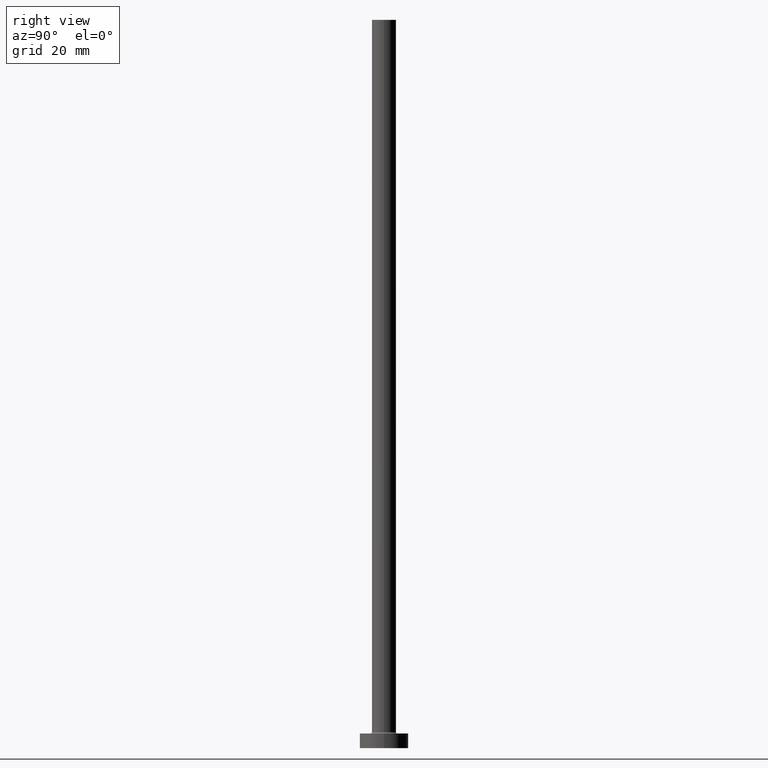
[diagram: clean part render]
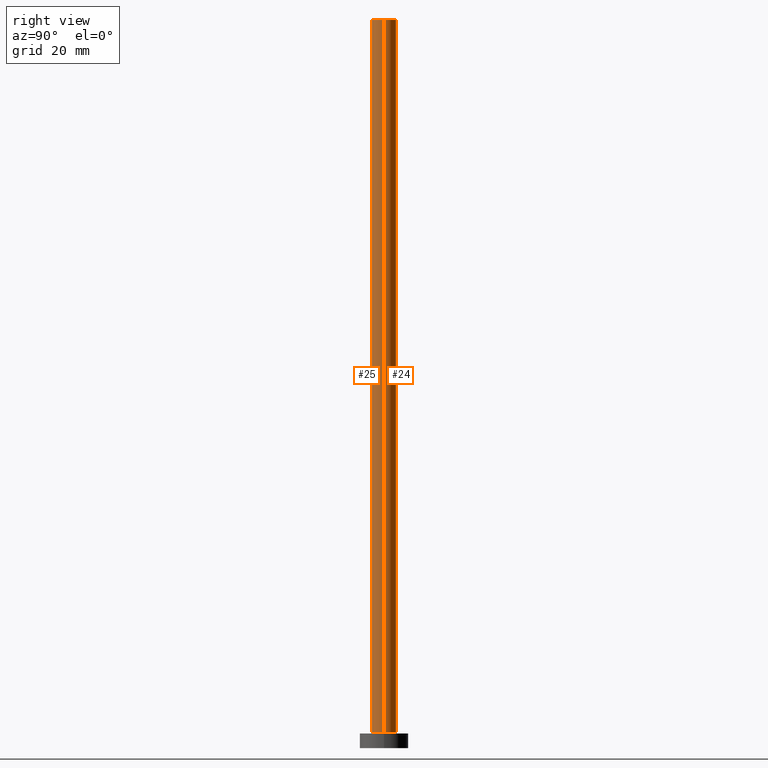
[diagram: same view with one multi-face feature highlighted, each face labeled with its STEP entity id]
A machine part, right view. The highlighted faces form ONE feature: a constant-radius fillet chain: 2 tangent blend faces with common blend radius 2.5 mm. The faces share edges in the B-rep.
Their STEP definitions:
[1] entity #25 (Cylinder):
#7 = FACE_OUTER_BOUND ( 'NONE', #373, .T. ) ;
#9 = CARTESIAN_POINT ( 'NONE',  ( 2.500000000000000000, 3.061616997868383141E-16, 150.0000000000000000 ) ) ;
#15 = EDGE_CURVE ( 'NONE', #148, #45, #404, .T. ) ;
#23 = CARTESIAN_POINT ( 'NONE',  ( 0.000000000000000000, 0.000000000000000000, 3.299999999999997158 ) ) ;
#25 = ADVANCED_FACE ( 'NONE', ( #7 ), #162, .T. ) ;
#31 = CARTESIAN_POINT ( 'NONE',  ( -2.500000000000000000, 0.000000000000000000, 150.0000000000000000 ) ) ;
#45 = VERTEX_POINT ( 'NONE', #206 ) ;
#77 = AXIS2_PLACEMENT_3D ( 'NONE', #171, #199, #243 ) ;
#135 = ORIENTED_EDGE ( 'NONE', *, *, #177, .T. ) ;
#148 = VERTEX_POINT ( 'NONE', #311 ) ;
#158 = CARTESIAN_POINT ( 'NONE',  ( -2.500000000000000000, 0.000000000000000000, 3.299999999999997158 ) ) ;
#162 = CYLINDRICAL_SURFACE ( 'NONE', #77, 2.500000000000000000 ) ;
#170 = CIRCLE ( 'NONE', #359, 2.500000000000000000 ) ;
#171 = CARTESIAN_POINT ( 'NONE',  ( 0.000000000000000000, 0.000000000000000000, 150.0000000000000000 ) ) ;
#177 = EDGE_CURVE ( 'NONE', #367, #45, #337, .T. ) ;
#180 = VERTEX_POINT ( 'NONE', #341 ) ;
#191 = ORIENTED_EDGE ( 'NONE', *, *, #305, .T. ) ;
#199 = DIRECTION ( 'NONE',  ( -0.000000000000000000, -0.000000000000000000, -1.000000000000000000 ) ) ;
#206 = CARTESIAN_POINT ( 'NONE',  ( 2.500000000000000000, 3.061616997868383141E-16, 3.299999999999997158 ) ) ;
#213 = LINE ( 'NONE', #31, #322 ) ;
#219 = VECTOR ( 'NONE', #266, 1000.000000000000000 ) ;
#232 = CARTESIAN_POINT ( 'NONE',  ( 0.000000000000000000, 0.000000000000000000, 150.0000000000000000 ) ) ;
#243 = DIRECTION ( 'NONE',  ( -1.000000000000000000, 0.000000000000000000, 0.000000000000000000 ) ) ;
#244 = DIRECTION ( 'NONE',  ( 0.000000000000000000, 0.000000000000000000, 1.000000000000000000 ) ) ;
#266 = DIRECTION ( 'NONE',  ( -0.000000000000000000, -0.000000000000000000, -1.000000000000000000 ) ) ;
#271 = DIRECTION ( 'NONE',  ( 1.000000000000000000, 0.000000000000000000, 0.000000000000000000 ) ) ;
#294 = DIRECTION ( 'NONE',  ( 1.000000000000000000, 0.000000000000000000, 0.000000000000000000 ) ) ;
#297 = AXIS2_PLACEMENT_3D ( 'NONE', #23, #244, #271 ) ;
#305 = EDGE_CURVE ( 'NONE', #180, #367, #213, .T. ) ;
#311 = CARTESIAN_POINT ( 'NONE',  ( 2.500000000000000000, 3.061616997868383141E-16, 150.0000000000000000 ) ) ;
#322 = VECTOR ( 'NONE', #454, 1000.000000000000000 ) ;
#332 = DIRECTION ( 'NONE',  ( 0.000000000000000000, 0.000000000000000000, 1.000000000000000000 ) ) ;
#337 = CIRCLE ( 'NONE', #297, 2.500000000000000000 ) ;
#341 = CARTESIAN_POINT ( 'NONE',  ( -2.500000000000000000, 0.000000000000000000, 150.0000000000000000 ) ) ;
#349 = EDGE_CURVE ( 'NONE', #180, #148, #170, .T. ) ;
#359 = AXIS2_PLACEMENT_3D ( 'NONE', #232, #332, #294 ) ;
#367 = VERTEX_POINT ( 'NONE', #158 ) ;
#373 = EDGE_LOOP ( 'NONE', ( #393, #455, #191, #135 ) ) ;
#393 = ORIENTED_EDGE ( 'NONE', *, *, #15, .F. ) ;
#404 = LINE ( 'NONE', #9, #219 ) ;
#454 = DIRECTION ( 'NONE',  ( -0.000000000000000000, -0.000000000000000000, -1.000000000000000000 ) ) ;
#455 = ORIENTED_EDGE ( 'NONE', *, *, #349, .F. ) ;
[2] entity #24 (Cylinder):
#9 = CARTESIAN_POINT ( 'NONE',  ( 2.500000000000000000, 3.061616997868383141E-16, 150.0000000000000000 ) ) ;
#15 = EDGE_CURVE ( 'NONE', #148, #45, #404, .T. ) ;
#24 = ADVANCED_FACE ( 'NONE', ( #338 ), #330, .T. ) ;
#31 = CARTESIAN_POINT ( 'NONE',  ( -2.500000000000000000, 0.000000000000000000, 150.0000000000000000 ) ) ;
#45 = VERTEX_POINT ( 'NONE', #206 ) ;
#51 = DIRECTION ( 'NONE',  ( -0.000000000000000000, -0.000000000000000000, -1.000000000000000000 ) ) ;
#70 = ORIENTED_EDGE ( 'NONE', *, *, #459, .T. ) ;
#98 = AXIS2_PLACEMENT_3D ( 'NONE', #192, #366, #255 ) ;
#100 = CIRCLE ( 'NONE', #323, 2.500000000000000000 ) ;
#101 = EDGE_CURVE ( 'NONE', #148, #180, #100, .T. ) ;
#113 = EDGE_LOOP ( 'NONE', ( #335, #123, #70, #396 ) ) ;
#123 = ORIENTED_EDGE ( 'NONE', *, *, #15, .T. ) ;
#148 = VERTEX_POINT ( 'NONE', #311 ) ;
#158 = CARTESIAN_POINT ( 'NONE',  ( -2.500000000000000000, 0.000000000000000000, 3.299999999999997158 ) ) ;
#180 = VERTEX_POINT ( 'NONE', #341 ) ;
#186 = AXIS2_PLACEMENT_3D ( 'NONE', #376, #51, #195 ) ;
#192 = CARTESIAN_POINT ( 'NONE',  ( 0.000000000000000000, 0.000000000000000000, 3.299999999999997158 ) ) ;
#195 = DIRECTION ( 'NONE',  ( -1.000000000000000000, 0.000000000000000000, 0.000000000000000000 ) ) ;
#206 = CARTESIAN_POINT ( 'NONE',  ( 2.500000000000000000, 3.061616997868383141E-16, 3.299999999999997158 ) ) ;
#213 = LINE ( 'NONE', #31, #322 ) ;
#219 = VECTOR ( 'NONE', #266, 1000.000000000000000 ) ;
#255 = DIRECTION ( 'NONE',  ( 1.000000000000000000, 0.000000000000000000, 0.000000000000000000 ) ) ;
#266 = DIRECTION ( 'NONE',  ( -0.000000000000000000, -0.000000000000000000, -1.000000000000000000 ) ) ;
#273 = DIRECTION ( 'NONE',  ( 1.000000000000000000, 0.000000000000000000, 0.000000000000000000 ) ) ;
#290 = CIRCLE ( 'NONE', #98, 2.500000000000000000 ) ;
#305 = EDGE_CURVE ( 'NONE', #180, #367, #213, .T. ) ;
#308 = CARTESIAN_POINT ( 'NONE',  ( 0.000000000000000000, 0.000000000000000000, 150.0000000000000000 ) ) ;
#311 = CARTESIAN_POINT ( 'NONE',  ( 2.500000000000000000, 3.061616997868383141E-16, 150.0000000000000000 ) ) ;
#322 = VECTOR ( 'NONE', #454, 1000.000000000000000 ) ;
#323 = AXIS2_PLACEMENT_3D ( 'NONE', #308, #451, #273 ) ;
#330 = CYLINDRICAL_SURFACE ( 'NONE', #186, 2.500000000000000000 ) ;
#335 = ORIENTED_EDGE ( 'NONE', *, *, #101, .F. ) ;
#338 = FACE_OUTER_BOUND ( 'NONE', #113, .T. ) ;
#341 = CARTESIAN_POINT ( 'NONE',  ( -2.500000000000000000, 0.000000000000000000, 150.0000000000000000 ) ) ;
#366 = DIRECTION ( 'NONE',  ( 0.000000000000000000, 0.000000000000000000, 1.000000000000000000 ) ) ;
#367 = VERTEX_POINT ( 'NONE', #158 ) ;
#376 = CARTESIAN_POINT ( 'NONE',  ( 0.000000000000000000, 0.000000000000000000, 150.0000000000000000 ) ) ;
#396 = ORIENTED_EDGE ( 'NONE', *, *, #305, .F. ) ;
#404 = LINE ( 'NONE', #9, #219 ) ;
#451 = DIRECTION ( 'NONE',  ( 0.000000000000000000, 0.000000000000000000, 1.000000000000000000 ) ) ;
#454 = DIRECTION ( 'NONE',  ( -0.000000000000000000, -0.000000000000000000, -1.000000000000000000 ) ) ;
#459 = EDGE_CURVE ( 'NONE', #45, #367, #290, .T. ) ;